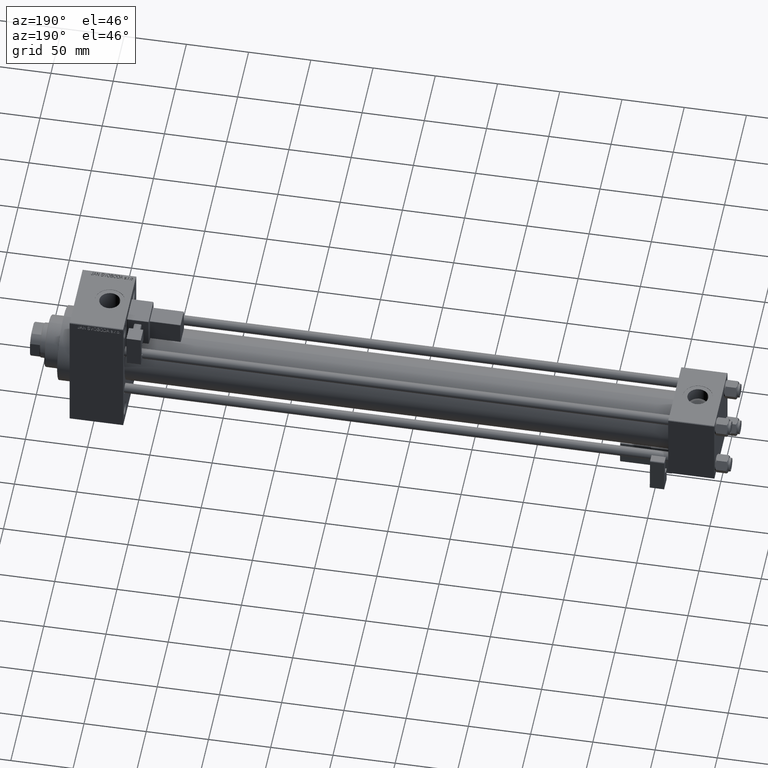
[diagram: clean part render]
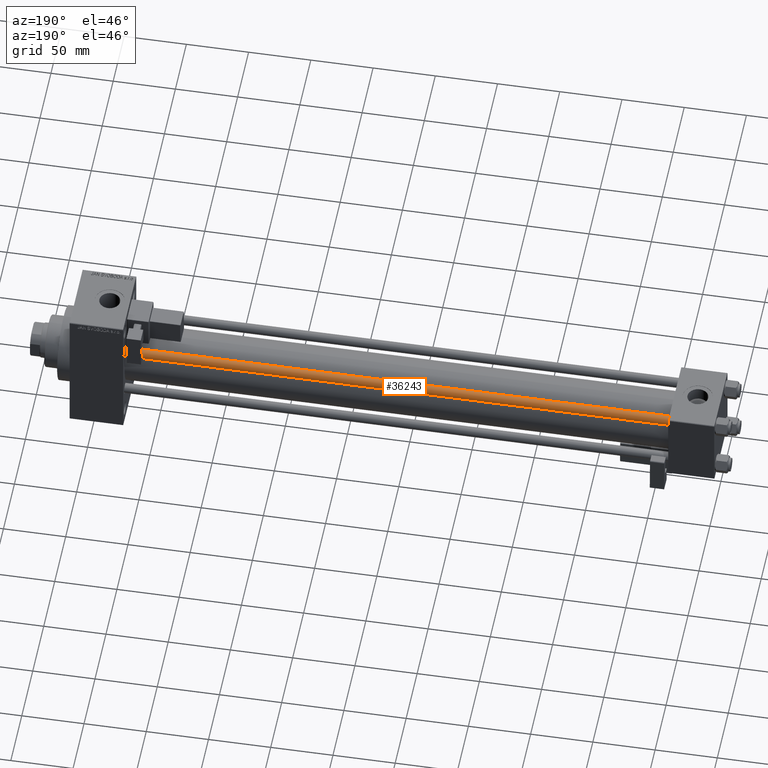
[diagram: same view with one face highlighted and labeled with its STEP entity id]
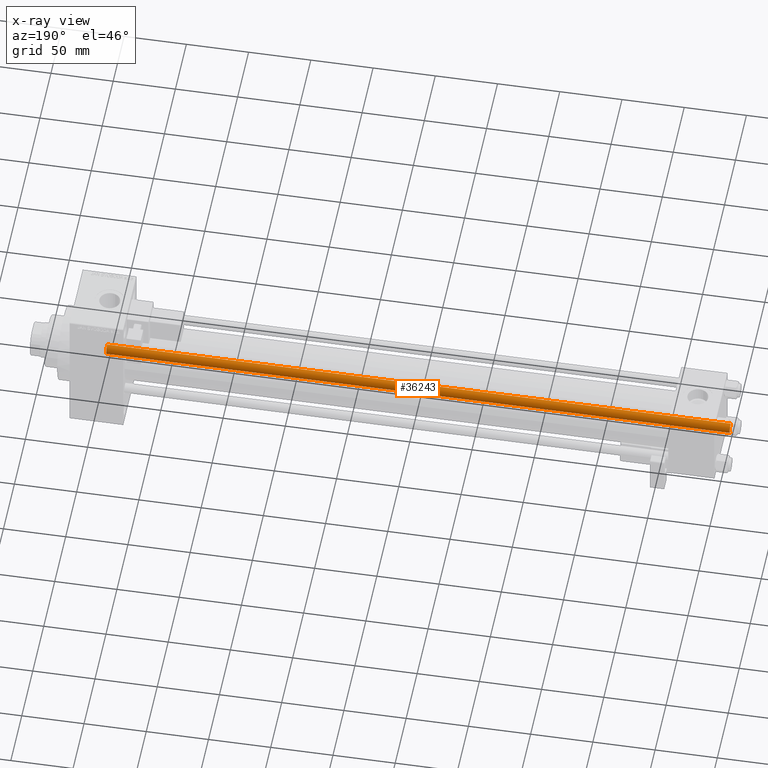
[diagram: x-ray of the same camera — body ghosted, the highlighted face saturated]
A machine part, auxiliary view. The second image highlights one B-rep face of the part: STEP entity #36243.
The next image is the same camera in x-ray: the body ghosted, the highlighted face saturated — about 0% of this face is hidden behind the body in this view.
In plain terms, the highlighted cylindrical surface (edge-blend (fillet) strip) has radius 4 mm, axis along (-1, -0, 0).
Its self-contained STEP definition (entity closure, byte-faithful):
#868 = VERTEX_POINT ( 'NONE', #38161 ) ;
#1187 = DIRECTION ( 'NONE',  ( 1.000000000000000000, 0.000000000000000000, 0.000000000000000000 ) ) ;
#1829 = FACE_OUTER_BOUND ( 'NONE', #30600, .T. ) ;
#2217 = ORIENTED_EDGE ( 'NONE', *, *, #37967, .F. ) ;
#5007 = DIRECTION ( 'NONE',  ( -0.000000000000000000, -0.000000000000000000, -1.000000000000000000 ) ) ;
#7479 = ORIENTED_EDGE ( 'NONE', *, *, #40574, .T. ) ;
#7615 = AXIS2_PLACEMENT_3D ( 'NONE', #24435, #40019, #20675 ) ;
#8108 = CARTESIAN_POINT ( 'NONE',  ( 4.000000000000000000, 4.898587196589412829E-16, 502.0000000000000000 ) ) ;
#8120 = ORIENTED_EDGE ( 'NONE', *, *, #9298, .T. ) ;
#9298 = EDGE_CURVE ( 'NONE', #15801, #27061, #10244, .T. ) ;
#9888 = VECTOR ( 'NONE', #5007, 1000.000000000000000 ) ;
#9909 = CARTESIAN_POINT ( 'NONE',  ( 4.000000000000000000, 4.898587196589412829E-16, 501.4999999999999432 ) ) ;
#10244 = CIRCLE ( 'NONE', #38358, 4.000000000000000000 ) ;
#13152 = CYLINDRICAL_SURFACE ( 'NONE', #21886, 4.000000000000000000 ) ;
#14762 = CARTESIAN_POINT ( 'NONE',  ( -4.000000000000000000, 0.000000000000000000, 501.4999999999999432 ) ) ;
#15801 = VERTEX_POINT ( 'NONE', #14762 ) ;
#17171 = CARTESIAN_POINT ( 'NONE',  ( 0.000000000000000000, 0.000000000000000000, 502.0000000000000000 ) ) ;
#19597 = CARTESIAN_POINT ( 'NONE',  ( -4.000000000000000000, 0.000000000000000000, 502.0000000000000000 ) ) ;
#20675 = DIRECTION ( 'NONE',  ( 1.000000000000000000, 0.000000000000000000, 0.000000000000000000 ) ) ;
#21886 = AXIS2_PLACEMENT_3D ( 'NONE', #17171, #47848, #27996 ) ;
#22877 = LINE ( 'NONE', #19597, #9888 ) ;
#23437 = DIRECTION ( 'NONE',  ( -0.000000000000000000, -0.000000000000000000, -1.000000000000000000 ) ) ;
#24435 = CARTESIAN_POINT ( 'NONE',  ( 0.000000000000000000, 0.000000000000000000, 0.4999999999999449329 ) ) ;
#24990 = ORIENTED_EDGE ( 'NONE', *, *, #40618, .T. ) ;
#27061 = VERTEX_POINT ( 'NONE', #9909 ) ;
#27139 = CARTESIAN_POINT ( 'NONE',  ( -4.000000000000000000, 0.000000000000000000, 0.4999999999999449329 ) ) ;
#27659 = CIRCLE ( 'NONE', #7615, 4.000000000000000000 ) ;
#27996 = DIRECTION ( 'NONE',  ( -1.000000000000000000, 0.000000000000000000, 0.000000000000000000 ) ) ;
#30600 = EDGE_LOOP ( 'NONE', ( #8120, #7479, #24990, #2217 ) ) ;
#36243 = ADVANCED_FACE ( 'NONE', ( #1829 ), #13152, .T. ) ;
#37967 = EDGE_CURVE ( 'NONE', #15801, #37991, #22877, .T. ) ;
#37991 = VERTEX_POINT ( 'NONE', #27139 ) ;
#38161 = CARTESIAN_POINT ( 'NONE',  ( 4.000000000000000000, 4.898587196589412829E-16, 0.4999999999999449329 ) ) ;
#38358 = AXIS2_PLACEMENT_3D ( 'NONE', #39900, #39399, #1187 ) ;
#39399 = DIRECTION ( 'NONE',  ( 0.000000000000000000, 0.000000000000000000, -1.000000000000000000 ) ) ;
#39900 = CARTESIAN_POINT ( 'NONE',  ( 0.000000000000000000, 0.000000000000000000, 501.4999999999999432 ) ) ;
#40019 = DIRECTION ( 'NONE',  ( -0.000000000000000000, -0.000000000000000000, 1.000000000000000000 ) ) ;
#40574 = EDGE_CURVE ( 'NONE', #27061, #868, #42564, .T. ) ;
#40618 = EDGE_CURVE ( 'NONE', #868, #37991, #27659, .T. ) ;
#42564 = LINE ( 'NONE', #8108, #43728 ) ;
#43728 = VECTOR ( 'NONE', #23437, 1000.000000000000000 ) ;
#47848 = DIRECTION ( 'NONE',  ( -0.000000000000000000, -0.000000000000000000, -1.000000000000000000 ) ) ;